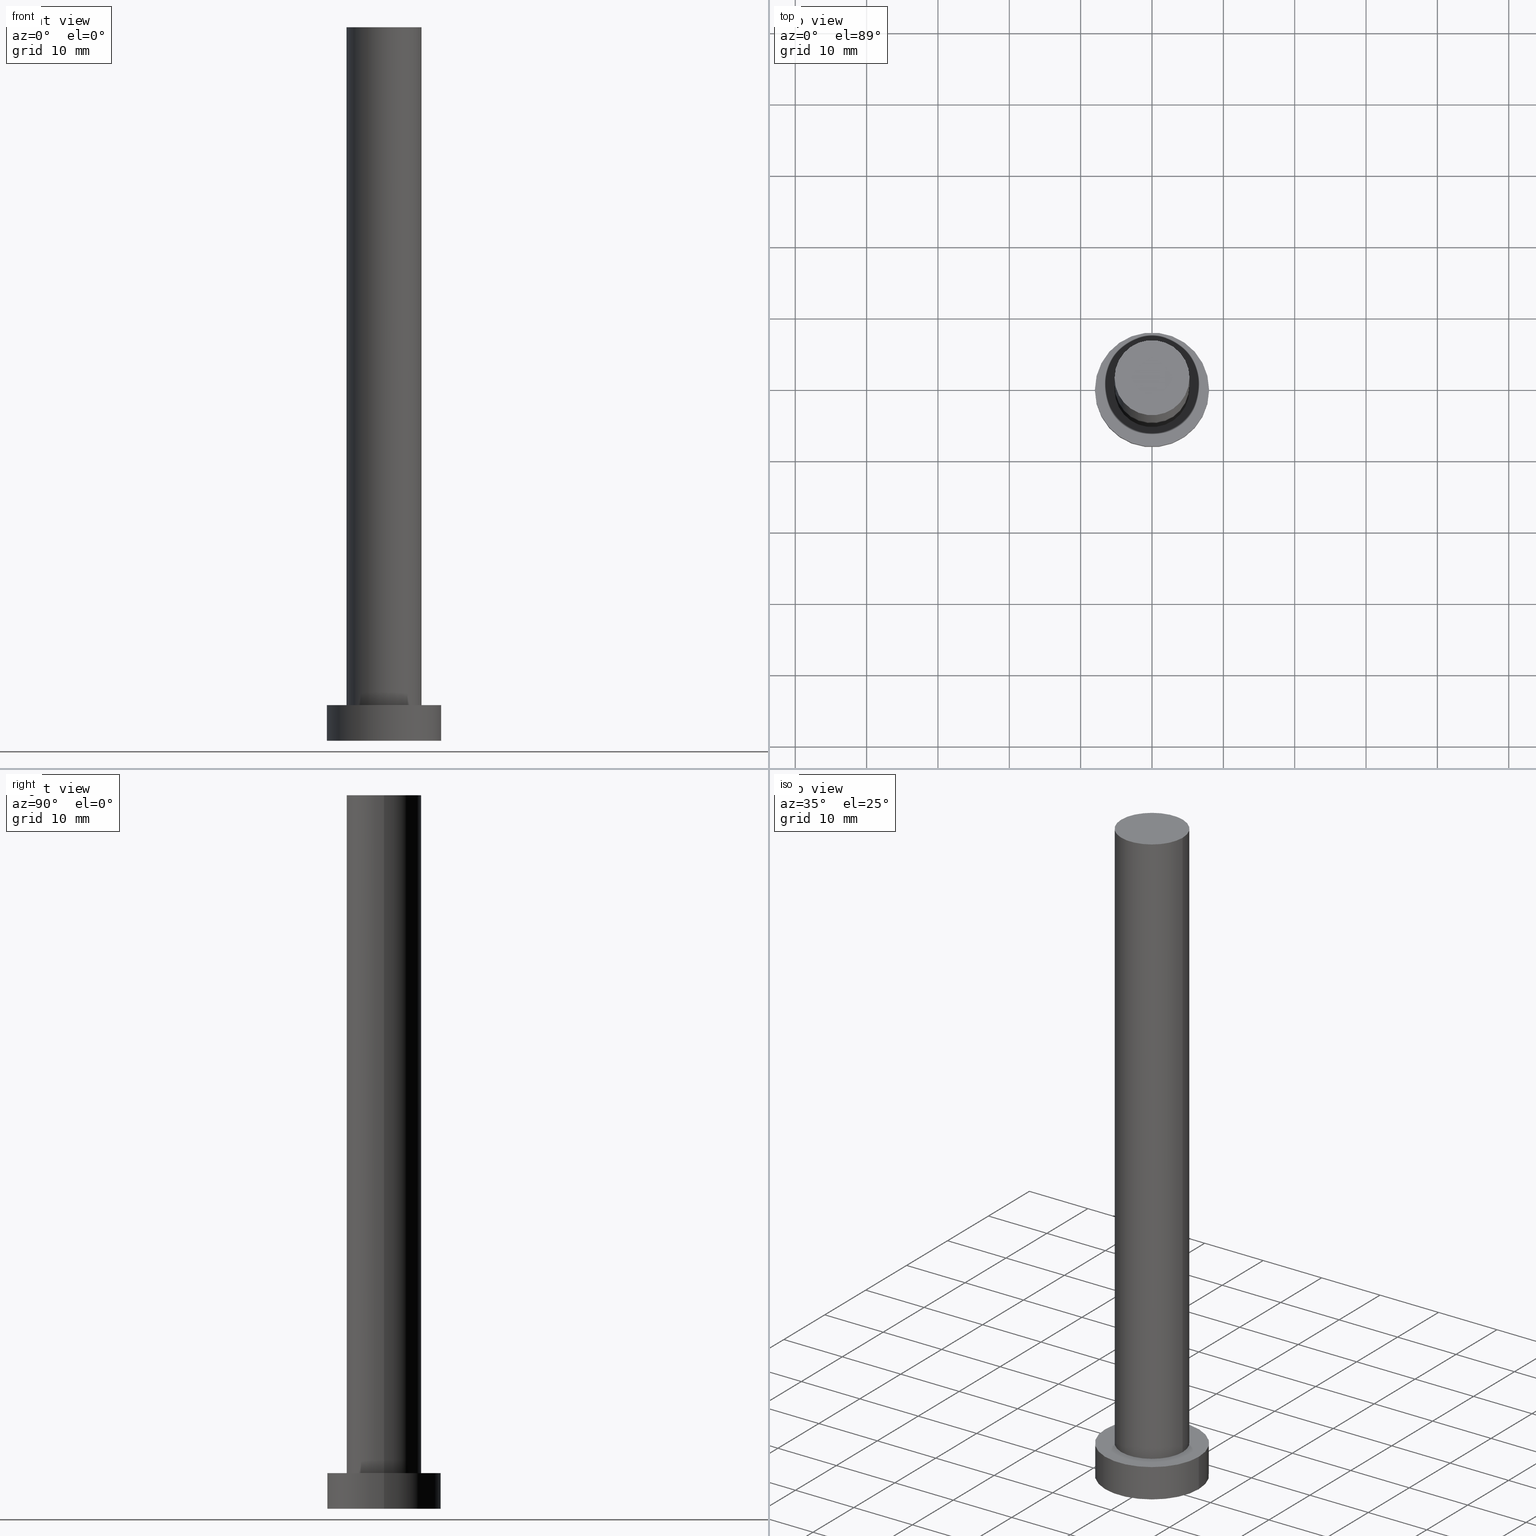
[diagram: canonical four-view strip — front | top / right | iso, engineering-drawing reading convention]
A machine part, canonical four-view strip (front | top / right | iso — engineering-drawing reading convention). The complete STEP part file that produces these views, byte-faithful:
ISO-10303-21;
HEADER;
FILE_DESCRIPTION (( 'STEP AP203' ),
    '1' );
FILE_NAME ('fdd5.STEP',
    '2023-02-12T11:17:21',
    ( '' ),
    ( '' ),
    'SwSTEP 2.0',
    'SolidWorks 2019',
    '' );
FILE_SCHEMA (( 'CONFIG_CONTROL_DESIGN' ));
ENDSEC;

DATA;
#1 = APPROVAL ( #232, 'NEUR�EN�' ) ;
#2 = CC_DESIGN_PERSON_AND_ORGANIZATION_ASSIGNMENT ( #69, #10, ( #32 ) ) ;
#3 =( NAMED_UNIT ( * ) SI_UNIT ( $, .STERADIAN. ) SOLID_ANGLE_UNIT ( ) );
#4 = ORIENTED_EDGE ( 'NONE', *, *, #202, .T. ) ;
#5 = CARTESIAN_POINT ( 'NONE',  ( 0.000000000000000000, 0.000000000000000000, 100.0000000000000000 ) ) ;
#6 = ORIENTED_EDGE ( 'NONE', *, *, #49, .F. ) ;
#7 = CARTESIAN_POINT ( 'NONE',  ( 0.000000000000000000, 0.000000000000000000, 100.0000000000000000 ) ) ;
#8 = ORIENTED_EDGE ( 'NONE', *, *, #188, .F. ) ;
#9 = AXIS2_PLACEMENT_3D ( 'NONE', #208, #67, #149 ) ;
#10 = PERSON_AND_ORGANIZATION_ROLE ( 'design_supplier' ) ;
#11 = FACE_OUTER_BOUND ( 'NONE', #155, .T. ) ;
#12 = DIRECTION ( 'NONE',  ( 0.000000000000000000, 0.000000000000000000, 1.000000000000000000 ) ) ;
#13 = CARTESIAN_POINT ( 'NONE',  ( 8.000000000000000000, 9.797174393178825657E-16, 5.000000000000000000 ) ) ;
#14 = APPROVAL_PERSON_ORGANIZATION ( #150, #165, #171 ) ;
#15 = CIRCLE ( 'NONE', #97, 8.000000000000000000 ) ;
#16 = ORIENTED_EDGE ( 'NONE', *, *, #39, .T. ) ;
#17 = DIRECTION ( 'NONE',  ( -1.000000000000000000, 0.000000000000000000, 0.000000000000000000 ) ) ;
#18 = EDGE_LOOP ( 'NONE', ( #92, #16 ) ) ;
#19 = ORIENTED_EDGE ( 'NONE', *, *, #249, .F. ) ;
#20 = VECTOR ( 'NONE', #125, 1000.000000000000000 ) ;
#21 = DATE_AND_TIME ( #154, #104 ) ;
#22 = CARTESIAN_POINT ( 'NONE',  ( -8.000000000000000000, 0.000000000000000000, 0.000000000000000000 ) ) ;
#23 = COORDINATED_UNIVERSAL_TIME_OFFSET ( 1, 0, .AHEAD. ) ;
#24 = CARTESIAN_POINT ( 'NONE',  ( -5.250000000000000888, 0.000000000000000000, 100.0000000000000000 ) ) ;
#25 = DIRECTION ( 'NONE',  ( -1.000000000000000000, 0.000000000000000000, 0.000000000000000000 ) ) ;
#26 = COORDINATED_UNIVERSAL_TIME_OFFSET ( 1, 0, .AHEAD. ) ;
#27 = VECTOR ( 'NONE', #236, 1000.000000000000000 ) ;
#28 = UNCERTAINTY_MEASURE_WITH_UNIT (LENGTH_MEASURE( 1.000000000000000082E-05 ), #71, 'distance_accuracy_value', 'NONE');
#29 = ORIENTED_EDGE ( 'NONE', *, *, #49, .T. ) ;
#30 = ADVANCED_FACE ( 'NONE', ( #162 ), #200, .T. ) ;
#31 = ADVANCED_FACE ( 'NONE', ( #221 ), #164, .F. ) ;
#32 = PRODUCT_DEFINITION_FORMATION_WITH_SPECIFIED_SOURCE ( 'LIBOVOLN�', '', #185, .NOT_KNOWN. ) ;
#33 = DIRECTION ( 'NONE',  ( 0.000000000000000000, 0.000000000000000000, 1.000000000000000000 ) ) ;
#34 = ORIENTED_EDGE ( 'NONE', *, *, #244, .F. ) ;
#35 = ORIENTED_EDGE ( 'NONE', *, *, #250, .T. ) ;
#36 = CARTESIAN_POINT ( 'NONE',  ( 0.000000000000000000, 0.000000000000000000, 0.000000000000000000 ) ) ;
#37 = VERTEX_POINT ( 'NONE', #24 ) ;
#38 = PERSON_AND_ORGANIZATION ( #98, #197 ) ;
#39 = EDGE_CURVE ( 'NONE', #157, #37, #80, .T. ) ;
#40 = ADVANCED_FACE ( 'NONE', ( #11 ), #46, .T. ) ;
#41 = AXIS2_PLACEMENT_3D ( 'NONE', #191, #216, #179 ) ;
#42 = APPROVAL_ROLE ( '' ) ;
#43 = DIRECTION ( 'NONE',  ( -1.000000000000000000, 0.000000000000000000, 0.000000000000000000 ) ) ;
#44 = PERSON_AND_ORGANIZATION_ROLE ( 'creator' ) ;
#45 = DIRECTION ( 'NONE',  ( 0.000000000000000000, 0.000000000000000000, 1.000000000000000000 ) ) ;
#46 = CYLINDRICAL_SURFACE ( 'NONE', #218, 8.000000000000000000 ) ;
#47 = LINE ( 'NONE', #50, #228 ) ;
#48 = PRODUCT_DEFINITION_SHAPE ( 'NONE', 'NONE',  #194 ) ;
#49 = EDGE_CURVE ( 'NONE', #238, #175, #68, .T. ) ;
#50 = CARTESIAN_POINT ( 'NONE',  ( 5.250000000000000888, 6.429395695523605139E-16, 100.0000000000000000 ) ) ;
#51 = CC_DESIGN_APPROVAL ( #165, ( #207 ) ) ;
#52 = VERTEX_POINT ( 'NONE', #248 ) ;
#53 = ADVANCED_BREP_SHAPE_REPRESENTATION ( 'fdd5', ( #148, #177 ), #214 ) ;
#54 = DIRECTION ( 'NONE',  ( 0.000000000000000000, 0.000000000000000000, 1.000000000000000000 ) ) ;
#55 = CIRCLE ( 'NONE', #225, 5.250000000000000888 ) ;
#56 = APPLICATION_CONTEXT ( 'configuration controlled 3d designs of mechanical parts and assemblies' ) ;
#57 = FACE_OUTER_BOUND ( 'NONE', #60, .T. ) ;
#58 = ORIENTED_EDGE ( 'NONE', *, *, #244, .T. ) ;
#59 = AXIS2_PLACEMENT_3D ( 'NONE', #143, #82, #145 ) ;
#60 = EDGE_LOOP ( 'NONE', ( #134, #133, #76, #199 ) ) ;
#61 = AXIS2_PLACEMENT_3D ( 'NONE', #5, #160, #25 ) ;
#62 = COORDINATED_UNIVERSAL_TIME_OFFSET ( 1, 0, .AHEAD. ) ;
#63 = ORIENTED_EDGE ( 'NONE', *, *, #188, .T. ) ;
#64 = DIRECTION ( 'NONE',  ( 1.000000000000000000, 0.000000000000000000, -0.000000000000000000 ) ) ;
#65 = LOCAL_TIME ( 12, 17, 21.00000000000000000, #26 ) ;
#66 = DATE_AND_TIME ( #123, #151 ) ;
#67 = DIRECTION ( 'NONE',  ( 0.000000000000000000, 0.000000000000000000, 1.000000000000000000 ) ) ;
#68 = CIRCLE ( 'NONE', #59, 5.250000000000000888 ) ;
#69 = PERSON_AND_ORGANIZATION ( #98, #197 ) ;
#70 = CC_DESIGN_DATE_AND_TIME_ASSIGNMENT ( #21, #226, ( #194 ) ) ;
#71 =( LENGTH_UNIT ( ) NAMED_UNIT ( * ) SI_UNIT ( .MILLI., .METRE. ) );
#72 = CIRCLE ( 'NONE', #224, 5.250000000000000888 ) ;
#73 = ORIENTED_EDGE ( 'NONE', *, *, #109, .F. ) ;
#74 = CARTESIAN_POINT ( 'NONE',  ( 5.250000000000000888, 6.429395695523605139E-16, 100.0000000000000000 ) ) ;
#75 = EDGE_LOOP ( 'NONE', ( #6, #34 ) ) ;
#76 = ORIENTED_EDGE ( 'NONE', *, *, #109, .T. ) ;
#77 = EDGE_LOOP ( 'NONE', ( #161, #113 ) ) ;
#78 = DIRECTION ( 'NONE',  ( 1.000000000000000000, 0.000000000000000000, 0.000000000000000000 ) ) ;
#79 = APPROVAL_PERSON_ORGANIZATION ( #223, #89, #242 ) ;
#80 = CIRCLE ( 'NONE', #131, 5.250000000000000888 ) ;
#81 = MECHANICAL_CONTEXT ( 'NONE', #182, 'mechanical' ) ;
#82 = DIRECTION ( 'NONE',  ( 0.000000000000000000, 0.000000000000000000, 1.000000000000000000 ) ) ;
#83 = PERSON_AND_ORGANIZATION_ROLE ( 'classification_officer' ) ;
#84 = FACE_OUTER_BOUND ( 'NONE', #77, .T. ) ;
#85 = COORDINATED_UNIVERSAL_TIME_OFFSET ( 1, 0, .AHEAD. ) ;
#86 = DIRECTION ( 'NONE',  ( -0.000000000000000000, -0.000000000000000000, -1.000000000000000000 ) ) ;
#87 = DIRECTION ( 'NONE',  ( -0.000000000000000000, -0.000000000000000000, -1.000000000000000000 ) ) ;
#88 = ADVANCED_FACE ( 'NONE', ( #189 ), #101, .T. ) ;
#89 = APPROVAL ( #118, 'NEUR�EN�' ) ;
#90 = DIRECTION ( 'NONE',  ( -0.000000000000000000, -0.000000000000000000, -1.000000000000000000 ) ) ;
#91 = SHAPE_DEFINITION_REPRESENTATION ( #48, #53 ) ;
#92 = ORIENTED_EDGE ( 'NONE', *, *, #120, .T. ) ;
#93 = ORIENTED_EDGE ( 'NONE', *, *, #39, .F. ) ;
#94 = VERTEX_POINT ( 'NONE', #22 ) ;
#95 = CARTESIAN_POINT ( 'NONE',  ( -8.000000000000000000, 0.000000000000000000, 5.000000000000000000 ) ) ;
#96 = CARTESIAN_POINT ( 'NONE',  ( 0.000000000000000000, 0.000000000000000000, 5.000000000000000000 ) ) ;
#97 = AXIS2_PLACEMENT_3D ( 'NONE', #96, #255, #130 ) ;
#98 = PERSON ( 'NEUR�EN�', 'NEUR�EN�', 'NEUR�EN�', ('NEUR�EN�'), ('NEUR�EN�'), ('NEUR�EN�') ) ;
#99 = APPROVAL_DATE_TIME ( #203, #89 ) ;
#100 = DIRECTION ( 'NONE',  ( -0.000000000000000000, -0.000000000000000000, -1.000000000000000000 ) ) ;
#101 = CYLINDRICAL_SURFACE ( 'NONE', #241, 5.250000000000000888 ) ;
#102 = APPROVAL_DATE_TIME ( #124, #165 ) ;
#103 = FACE_BOUND ( 'NONE', #75, .T. ) ;
#104 = LOCAL_TIME ( 12, 17, 21.00000000000000000, #23 ) ;
#105 = PERSON_AND_ORGANIZATION ( #98, #197 ) ;
#106 = CARTESIAN_POINT ( 'NONE',  ( 0.000000000000000000, 0.000000000000000000, 0.000000000000000000 ) ) ;
#107 = ADVANCED_FACE ( 'NONE', ( #103, #84 ), #169, .T. ) ;
#108 = DIRECTION ( 'NONE',  ( 0.000000000000000000, 0.000000000000000000, 1.000000000000000000 ) ) ;
#109 = EDGE_CURVE ( 'NONE', #183, #94, #128, .T. ) ;
#110 = CARTESIAN_POINT ( 'NONE',  ( 0.000000000000000000, 0.000000000000000000, 5.000000000000000000 ) ) ;
#111 = COORDINATED_UNIVERSAL_TIME_OFFSET ( 1, 0, .AHEAD. ) ;
#112 =( NAMED_UNIT ( * ) PLANE_ANGLE_UNIT ( ) SI_UNIT ( $, .RADIAN. ) );
#113 = ORIENTED_EDGE ( 'NONE', *, *, #138, .T. ) ;
#114 = AXIS2_PLACEMENT_3D ( 'NONE', #213, #172, #17 ) ;
#115 = LINE ( 'NONE', #13, #204 ) ;
#116 = EDGE_CURVE ( 'NONE', #94, #178, #192, .T. ) ;
#117 = DIRECTION ( 'NONE',  ( 0.000000000000000000, 0.000000000000000000, 1.000000000000000000 ) ) ;
#118 = APPROVAL_STATUS ( 'not_yet_approved' ) ;
#119 = ORIENTED_EDGE ( 'NONE', *, *, #120, .F. ) ;
#120 = EDGE_CURVE ( 'NONE', #37, #157, #72, .T. ) ;
#121 = CARTESIAN_POINT ( 'NONE',  ( 0.000000000000000000, 0.000000000000000000, 100.0000000000000000 ) ) ;
#122 = ADVANCED_FACE ( 'NONE', ( #57 ), #215, .T. ) ;
#123 = CALENDAR_DATE ( 2023, 12, 2 ) ;
#124 = DATE_AND_TIME ( #168, #243 ) ;
#125 = DIRECTION ( 'NONE',  ( -0.000000000000000000, -0.000000000000000000, -1.000000000000000000 ) ) ;
#126 = AXIS2_PLACEMENT_3D ( 'NONE', #137, #108, #139 ) ;
#127 = PERSON_AND_ORGANIZATION ( #98, #197 ) ;
#128 = LINE ( 'NONE', #209, #20 ) ;
#129 = SECURITY_CLASSIFICATION_LEVEL ( 'unclassified' ) ;
#130 = DIRECTION ( 'NONE',  ( 1.000000000000000000, 0.000000000000000000, 0.000000000000000000 ) ) ;
#131 = AXIS2_PLACEMENT_3D ( 'NONE', #247, #206, #245 ) ;
#132 = DESIGN_CONTEXT ( 'detailed design', #56, 'design' ) ;
#133 = ORIENTED_EDGE ( 'NONE', *, *, #136, .F. ) ;
#134 = ORIENTED_EDGE ( 'NONE', *, *, #250, .F. ) ;
#135 = CC_DESIGN_APPROVAL ( #1, ( #32 ) ) ;
#136 = EDGE_CURVE ( 'NONE', #183, #52, #15, .T. ) ;
#137 = CARTESIAN_POINT ( 'NONE',  ( 0.000000000000000000, 0.000000000000000000, 5.000000000000000000 ) ) ;
#138 = EDGE_CURVE ( 'NONE', #52, #183, #144, .T. ) ;
#139 = DIRECTION ( 'NONE',  ( 1.000000000000000000, 0.000000000000000000, 0.000000000000000000 ) ) ;
#140 = CARTESIAN_POINT ( 'NONE',  ( -5.250000000000000888, 0.000000000000000000, 100.0000000000000000 ) ) ;
#141 = PERSON_AND_ORGANIZATION ( #98, #197 ) ;
#142 = DIRECTION ( 'NONE',  ( 1.000000000000000000, 0.000000000000000000, -0.000000000000000000 ) ) ;
#143 = CARTESIAN_POINT ( 'NONE',  ( 0.000000000000000000, 0.000000000000000000, 5.000000000000000000 ) ) ;
#144 = CIRCLE ( 'NONE', #126, 8.000000000000000000 ) ;
#145 = DIRECTION ( 'NONE',  ( 1.000000000000000000, 0.000000000000000000, 0.000000000000000000 ) ) ;
#146 = DIRECTION ( 'NONE',  ( -1.000000000000000000, 0.000000000000000000, 0.000000000000000000 ) ) ;
#147 = CALENDAR_DATE ( 2023, 12, 2 ) ;
#148 = MANIFOLD_SOLID_BREP ( 'P�idat vysunut�m3', #251 ) ;
#149 = DIRECTION ( 'NONE',  ( 1.000000000000000000, 0.000000000000000000, -0.000000000000000000 ) ) ;
#150 = PERSON_AND_ORGANIZATION ( #98, #197 ) ;
#151 = LOCAL_TIME ( 12, 17, 21.00000000000000000, #85 ) ;
#152 = DATE_TIME_ROLE ( 'classification_date' ) ;
#153 = CARTESIAN_POINT ( 'NONE',  ( 0.000000000000000000, 0.000000000000000000, 100.0000000000000000 ) ) ;
#154 = CALENDAR_DATE ( 2023, 12, 2 ) ;
#155 = EDGE_LOOP ( 'NONE', ( #196, #35, #233, #73 ) ) ;
#156 = DIRECTION ( 'NONE',  ( 1.000000000000000000, 0.000000000000000000, 0.000000000000000000 ) ) ;
#157 = VERTEX_POINT ( 'NONE', #74 ) ;
#158 = CIRCLE ( 'NONE', #41, 8.000000000000000000 ) ;
#159 = CARTESIAN_POINT ( 'NONE',  ( -5.250000000000000888, 0.000000000000000000, 5.000000000000000000 ) ) ;
#160 = DIRECTION ( 'NONE',  ( -0.000000000000000000, -0.000000000000000000, -1.000000000000000000 ) ) ;
#161 = ORIENTED_EDGE ( 'NONE', *, *, #136, .T. ) ;
#162 = FACE_OUTER_BOUND ( 'NONE', #18, .T. ) ;
#163 = APPLICATION_PROTOCOL_DEFINITION ( 'international standard', 'config_control_design', 1994, #56 ) ;
#164 = PLANE ( 'NONE',  #186 ) ;
#165 = APPROVAL ( #246, 'NEUR�EN�' ) ;
#166 = PRODUCT_RELATED_PRODUCT_CATEGORY ( 'detail', '', ( #185 ) ) ;
#167 = CARTESIAN_POINT ( 'NONE',  ( 0.000000000000000000, 0.000000000000000000, 5.000000000000000000 ) ) ;
#168 = CALENDAR_DATE ( 2023, 12, 2 ) ;
#169 = PLANE ( 'NONE',  #9 ) ;
#170 = DIRECTION ( 'NONE',  ( 1.000000000000000000, 0.000000000000000000, 0.000000000000000000 ) ) ;
#171 = APPROVAL_ROLE ( '' ) ;
#172 = DIRECTION ( 'NONE',  ( -0.000000000000000000, -0.000000000000000000, -1.000000000000000000 ) ) ;
#173 = APPROVAL_DATE_TIME ( #66, #1 ) ;
#174 = EDGE_LOOP ( 'NONE', ( #254, #19 ) ) ;
#175 = VERTEX_POINT ( 'NONE', #234 ) ;
#176 = AXIS2_PLACEMENT_3D ( 'NONE', #106, #12, #170 ) ;
#177 = AXIS2_PLACEMENT_3D ( 'NONE', #36, #117, #78 ) ;
#178 = VERTEX_POINT ( 'NONE', #237 ) ;
#179 = DIRECTION ( 'NONE',  ( 1.000000000000000000, 0.000000000000000000, 0.000000000000000000 ) ) ;
#180 = LOCAL_TIME ( 12, 17, 21.00000000000000000, #62 ) ;
#181 = LINE ( 'NONE', #140, #27 ) ;
#182 = APPLICATION_CONTEXT ( 'configuration controlled 3d designs of mechanical parts and assemblies' ) ;
#183 = VERTEX_POINT ( 'NONE', #95 ) ;
#184 = EDGE_LOOP ( 'NONE', ( #93, #63, #58, #217 ) ) ;
#185 = PRODUCT ( 'fdd5', 'fdd5', '', ( #81 ) ) ;
#186 = AXIS2_PLACEMENT_3D ( 'NONE', #229, #45, #64 ) ;
#187 = CC_DESIGN_PERSON_AND_ORGANIZATION_ASSIGNMENT ( #127, #83, ( #207 ) ) ;
#188 = EDGE_CURVE ( 'NONE', #157, #175, #47, .T. ) ;
#189 = FACE_OUTER_BOUND ( 'NONE', #253, .T. ) ;
#190 = CYLINDRICAL_SURFACE ( 'NONE', #61, 5.250000000000000888 ) ;
#191 = CARTESIAN_POINT ( 'NONE',  ( 0.000000000000000000, 0.000000000000000000, 0.000000000000000000 ) ) ;
#192 = CIRCLE ( 'NONE', #176, 8.000000000000000000 ) ;
#193 = APPROVAL_PERSON_ORGANIZATION ( #105, #1, #42 ) ;
#194 = PRODUCT_DEFINITION ( 'NEZN�M�', '', #32, #132 ) ;
#195 = CC_DESIGN_PERSON_AND_ORGANIZATION_ASSIGNMENT ( #141, #220, ( #185 ) ) ;
#196 = ORIENTED_EDGE ( 'NONE', *, *, #138, .F. ) ;
#197 = ORGANIZATION ( 'NEUR�EN�', 'NEUR�EN�', '' ) ;
#198 = APPLICATION_PROTOCOL_DEFINITION ( 'international standard', 'config_control_design', 1994, #182 ) ;
#199 = ORIENTED_EDGE ( 'NONE', *, *, #116, .T. ) ;
#200 = PLANE ( 'NONE',  #235 ) ;
#201 = PERSON_AND_ORGANIZATION_ROLE ( 'creator' ) ;
#202 = EDGE_CURVE ( 'NONE', #37, #238, #181, .T. ) ;
#203 = DATE_AND_TIME ( #222, #180 ) ;
#204 = VECTOR ( 'NONE', #90, 1000.000000000000000 ) ;
#205 = DATE_AND_TIME ( #147, #65 ) ;
#206 = DIRECTION ( 'NONE',  ( 0.000000000000000000, 0.000000000000000000, 1.000000000000000000 ) ) ;
#207 = SECURITY_CLASSIFICATION ( '', '', #129 ) ;
#208 = CARTESIAN_POINT ( 'NONE',  ( 0.000000000000000000, 0.000000000000000000, 5.000000000000000000 ) ) ;
#209 = CARTESIAN_POINT ( 'NONE',  ( -8.000000000000000000, 0.000000000000000000, 5.000000000000000000 ) ) ;
#210 = CC_DESIGN_PERSON_AND_ORGANIZATION_ASSIGNMENT ( #227, #44, ( #32 ) ) ;
#211 = FACE_OUTER_BOUND ( 'NONE', #184, .T. ) ;
#212 = CC_DESIGN_DATE_AND_TIME_ASSIGNMENT ( #205, #152, ( #207 ) ) ;
#213 = CARTESIAN_POINT ( 'NONE',  ( 0.000000000000000000, 0.000000000000000000, 5.000000000000000000 ) ) ;
#214 =( GEOMETRIC_REPRESENTATION_CONTEXT ( 3 ) GLOBAL_UNCERTAINTY_ASSIGNED_CONTEXT ( ( #28 ) ) GLOBAL_UNIT_ASSIGNED_CONTEXT ( ( #71, #112, #3 ) ) REPRESENTATION_CONTEXT ( 'NONE', 'WORKASPACE' ) );
#215 = CYLINDRICAL_SURFACE ( 'NONE', #114, 8.000000000000000000 ) ;
#216 = DIRECTION ( 'NONE',  ( 0.000000000000000000, 0.000000000000000000, 1.000000000000000000 ) ) ;
#217 = ORIENTED_EDGE ( 'NONE', *, *, #202, .F. ) ;
#218 = AXIS2_PLACEMENT_3D ( 'NONE', #167, #100, #43 ) ;
#219 = CC_DESIGN_SECURITY_CLASSIFICATION ( #207, ( #32 ) ) ;
#220 = PERSON_AND_ORGANIZATION_ROLE ( 'design_owner' ) ;
#221 = FACE_OUTER_BOUND ( 'NONE', #174, .T. ) ;
#222 = CALENDAR_DATE ( 2023, 12, 2 ) ;
#223 = PERSON_AND_ORGANIZATION ( #98, #197 ) ;
#224 = AXIS2_PLACEMENT_3D ( 'NONE', #153, #54, #156 ) ;
#225 = AXIS2_PLACEMENT_3D ( 'NONE', #110, #33, #252 ) ;
#226 = DATE_TIME_ROLE ( 'creation_date' ) ;
#227 = PERSON_AND_ORGANIZATION ( #98, #197 ) ;
#228 = VECTOR ( 'NONE', #87, 1000.000000000000000 ) ;
#229 = CARTESIAN_POINT ( 'NONE',  ( 0.000000000000000000, 0.000000000000000000, 0.000000000000000000 ) ) ;
#230 = CC_DESIGN_PERSON_AND_ORGANIZATION_ASSIGNMENT ( #38, #201, ( #194 ) ) ;
#231 = ADVANCED_FACE ( 'NONE', ( #211 ), #190, .T. ) ;
#232 = APPROVAL_STATUS ( 'not_yet_approved' ) ;
#233 = ORIENTED_EDGE ( 'NONE', *, *, #249, .T. ) ;
#234 = CARTESIAN_POINT ( 'NONE',  ( 5.250000000000000888, 6.429395695523605139E-16, 5.000000000000000000 ) ) ;
#235 = AXIS2_PLACEMENT_3D ( 'NONE', #7, #239, #142 ) ;
#236 = DIRECTION ( 'NONE',  ( -0.000000000000000000, -0.000000000000000000, -1.000000000000000000 ) ) ;
#237 = CARTESIAN_POINT ( 'NONE',  ( 8.000000000000000000, 9.797174393178825657E-16, 0.000000000000000000 ) ) ;
#238 = VERTEX_POINT ( 'NONE', #159 ) ;
#239 = DIRECTION ( 'NONE',  ( 0.000000000000000000, 0.000000000000000000, 1.000000000000000000 ) ) ;
#240 = CC_DESIGN_APPROVAL ( #89, ( #194 ) ) ;
#241 = AXIS2_PLACEMENT_3D ( 'NONE', #121, #86, #146 ) ;
#242 = APPROVAL_ROLE ( '' ) ;
#243 = LOCAL_TIME ( 12, 17, 21.00000000000000000, #111 ) ;
#244 = EDGE_CURVE ( 'NONE', #175, #238, #55, .T. ) ;
#245 = DIRECTION ( 'NONE',  ( 1.000000000000000000, 0.000000000000000000, 0.000000000000000000 ) ) ;
#246 = APPROVAL_STATUS ( 'not_yet_approved' ) ;
#247 = CARTESIAN_POINT ( 'NONE',  ( 0.000000000000000000, 0.000000000000000000, 100.0000000000000000 ) ) ;
#248 = CARTESIAN_POINT ( 'NONE',  ( 8.000000000000000000, 9.797174393178825657E-16, 5.000000000000000000 ) ) ;
#249 = EDGE_CURVE ( 'NONE', #178, #94, #158, .T. ) ;
#250 = EDGE_CURVE ( 'NONE', #52, #178, #115, .T. ) ;
#251 = CLOSED_SHELL ( 'NONE', ( #231, #40, #122, #107, #31, #88, #30 ) ) ;
#252 = DIRECTION ( 'NONE',  ( 1.000000000000000000, 0.000000000000000000, 0.000000000000000000 ) ) ;
#253 = EDGE_LOOP ( 'NONE', ( #8, #119, #4, #29 ) ) ;
#254 = ORIENTED_EDGE ( 'NONE', *, *, #116, .F. ) ;
#255 = DIRECTION ( 'NONE',  ( 0.000000000000000000, 0.000000000000000000, 1.000000000000000000 ) ) ;
ENDSEC;
END-ISO-10303-21;
